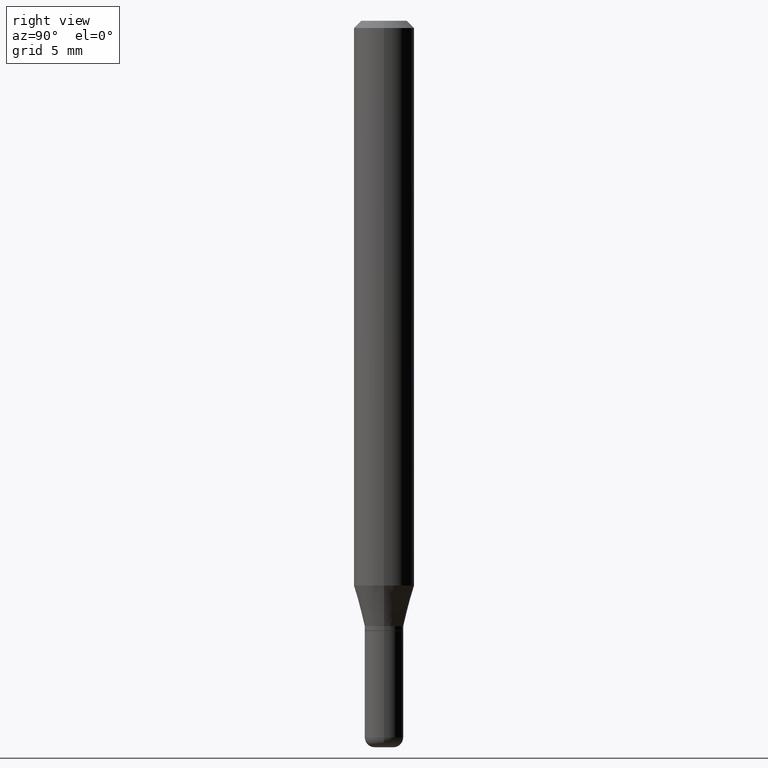
[diagram: clean part render]
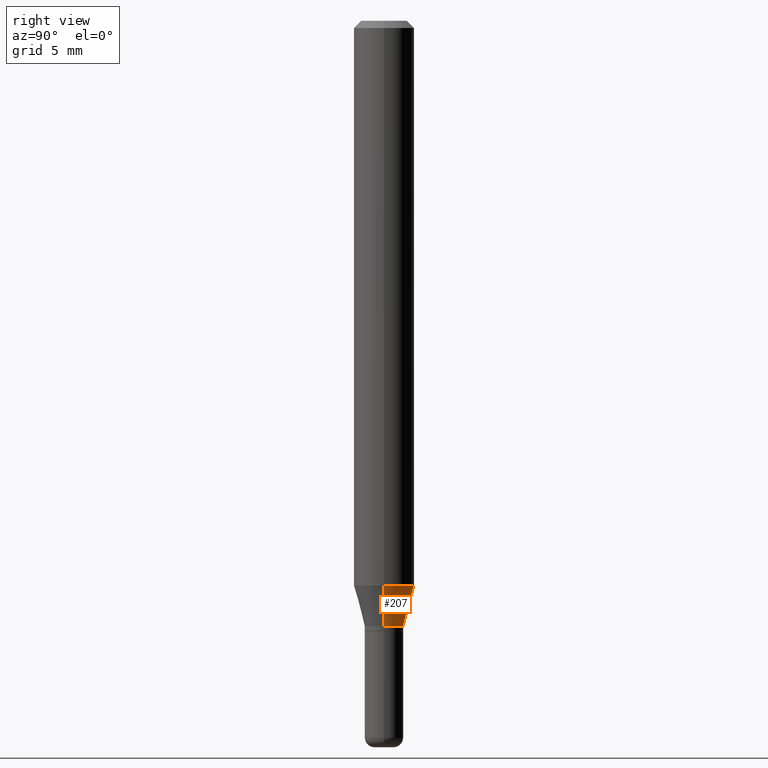
[diagram: same view with one face highlighted and labeled with its STEP entity id]
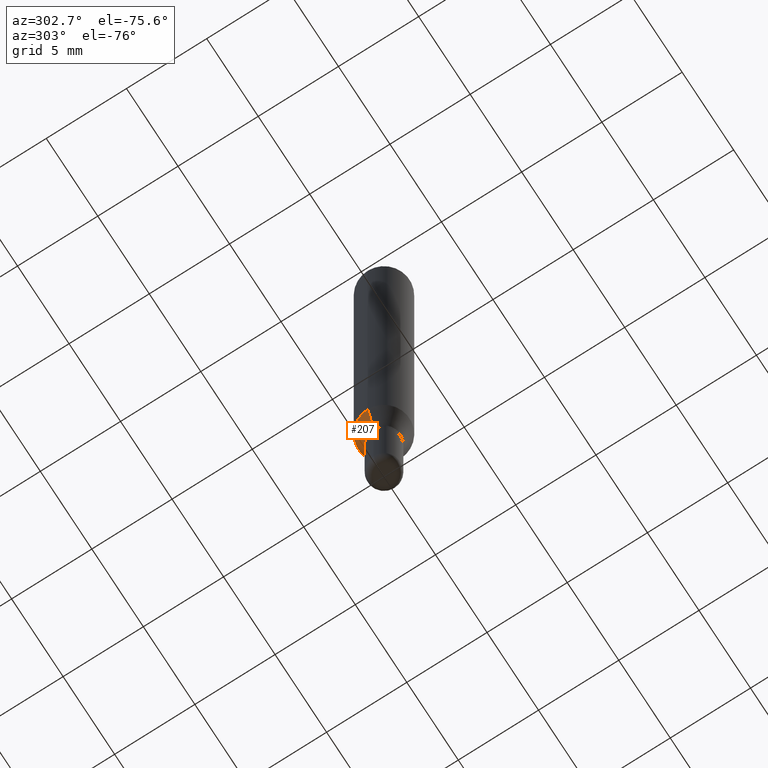
[diagram: same view with one face highlighted and labeled with its STEP entity id]
A machine part, right view. The second image highlights one B-rep face of the part: STEP entity #207.
A second angle (auxiliary view) of the same face is appended — the face is thin or edge-on in the first view.
In plain terms, the highlighted conical surface has half-angle 15 deg.
Its self-contained STEP definition (entity closure, byte-faithful):
#4 = CARTESIAN_POINT ( 'NONE',  ( -0.04000000000000000083, -4.080134579249892145E-15, -1.250000000000000000 ) ) ;
#16 = EDGE_CURVE ( 'NONE', #430, #267, #190, .T. ) ;
#21 = EDGE_CURVE ( 'NONE', #430, #399, #393, .T. ) ;
#51 = AXIS2_PLACEMENT_3D ( 'NONE', #191, #501, #356 ) ;
#68 = ORIENTED_EDGE ( 'NONE', *, *, #334, .T. ) ;
#89 = ORIENTED_EDGE ( 'NONE', *, *, #215, .F. ) ;
#94 = CARTESIAN_POINT ( 'NONE',  ( 3.056836007731421306E-29, -4.364351673553932471E-15, -1.250000000000000000 ) ) ;
#125 = CIRCLE ( 'NONE', #51, 0.06250000000000000000 ) ;
#136 = DIRECTION ( 'NONE',  ( -2.445468806185136597E-29, 3.491481338843145583E-15, 1.000000000000000000 ) ) ;
#181 = AXIS2_PLACEMENT_3D ( 'NONE', #94, #497, #426 ) ;
#190 = LINE ( 'NONE', #346, #478 ) ;
#191 = CARTESIAN_POINT ( 'NONE',  ( 2.851487196488747125E-29, -4.071167994173504722E-15, -1.166028856829700366 ) ) ;
#207 = ADVANCED_FACE ( 'NONE', ( #459 ), #220, .T. ) ;
#215 = EDGE_CURVE ( 'NONE', #267, #380, #125, .T. ) ;
#220 = CONICAL_SURFACE ( 'NONE', #181, 0.04000000000000000083, 0.2617993877991495189 ) ;
#244 = DIRECTION ( 'NONE',  ( -0.2588190451025207950, 5.211531920934546309E-15, 0.9659258262890682012 ) ) ;
#247 = AXIS2_PLACEMENT_3D ( 'NONE', #432, #136, #394 ) ;
#267 = VERTEX_POINT ( 'NONE', #457 ) ;
#286 = LINE ( 'NONE', #4, #401 ) ;
#334 = EDGE_CURVE ( 'NONE', #399, #380, #286, .T. ) ;
#346 = CARTESIAN_POINT ( 'NONE',  ( 0.04000000000000000083, -4.643670180661383298E-15, -1.250000000000000000 ) ) ;
#356 = DIRECTION ( 'NONE',  ( 1.000000000000000000, -6.982962677686262766E-15, 0.000000000000000000 ) ) ;
#380 = VERTEX_POINT ( 'NONE', #438 ) ;
#383 = CARTESIAN_POINT ( 'NONE',  ( 0.04000000000000000083, -4.643670180661383298E-15, -1.250000000000000000 ) ) ;
#393 = CIRCLE ( 'NONE', #247, 0.04000000000000000083 ) ;
#394 = DIRECTION ( 'NONE',  ( 1.000000000000000000, -6.982962677686271444E-15, 0.000000000000000000 ) ) ;
#395 = ORIENTED_EDGE ( 'NONE', *, *, #21, .T. ) ;
#399 = VERTEX_POINT ( 'NONE', #491 ) ;
#401 = VECTOR ( 'NONE', #244, 39.37007874015748854 ) ;
#426 = DIRECTION ( 'NONE',  ( 1.000000000000000000, -6.982962677686271444E-15, 0.000000000000000000 ) ) ;
#430 = VERTEX_POINT ( 'NONE', #383 ) ;
#432 = CARTESIAN_POINT ( 'NONE',  ( 3.056836007731421306E-29, -4.364351673553932471E-15, -1.250000000000000000 ) ) ;
#438 = CARTESIAN_POINT ( 'NONE',  ( -0.06250000000000000000, -3.627078784323442106E-15, -1.166028856829700366 ) ) ;
#457 = CARTESIAN_POINT ( 'NONE',  ( 0.06250000000000000000, -4.507603161528897181E-15, -1.166028856829700366 ) ) ;
#459 = FACE_OUTER_BOUND ( 'NONE', #481, .T. ) ;
#471 = ORIENTED_EDGE ( 'NONE', *, *, #16, .F. ) ;
#478 = VECTOR ( 'NONE', #500, 39.37007874015748854 ) ;
#481 = EDGE_LOOP ( 'NONE', ( #395, #68, #89, #471 ) ) ;
#491 = CARTESIAN_POINT ( 'NONE',  ( -0.04000000000000000083, -3.853606681786667125E-15, -1.250000000000000000 ) ) ;
#497 = DIRECTION ( 'NONE',  ( -2.445468806185136597E-29, 3.491481338843145583E-15, 1.000000000000000000 ) ) ;
#500 = DIRECTION ( 'NONE',  ( 0.2588190451025207950, 1.565188264969625912E-15, 0.9659258262890682012 ) ) ;
#501 = DIRECTION ( 'NONE',  ( -2.445468806185136597E-29, 3.491481338843145583E-15, 1.000000000000000000 ) ) ;